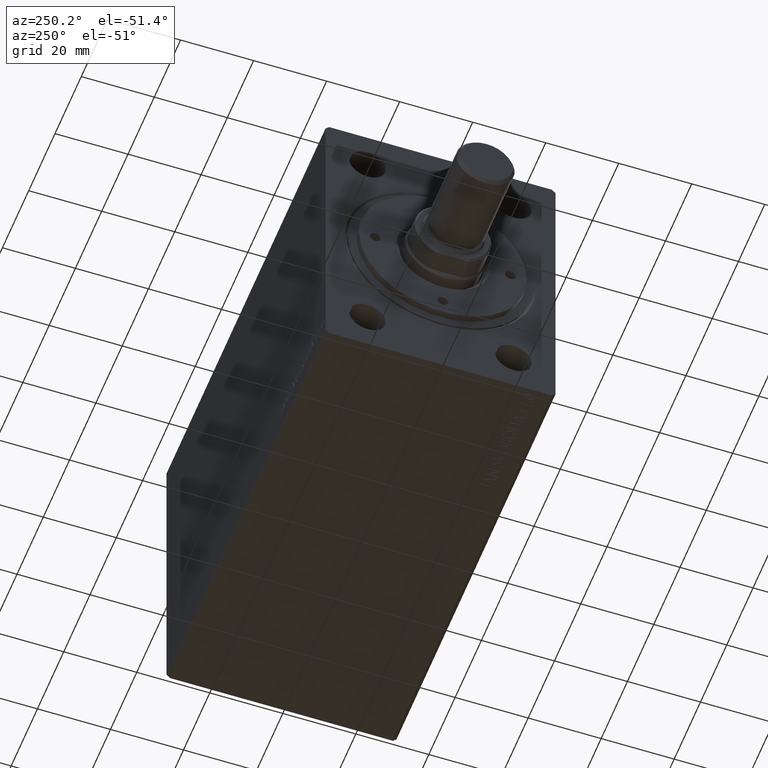
[diagram: clean part render]
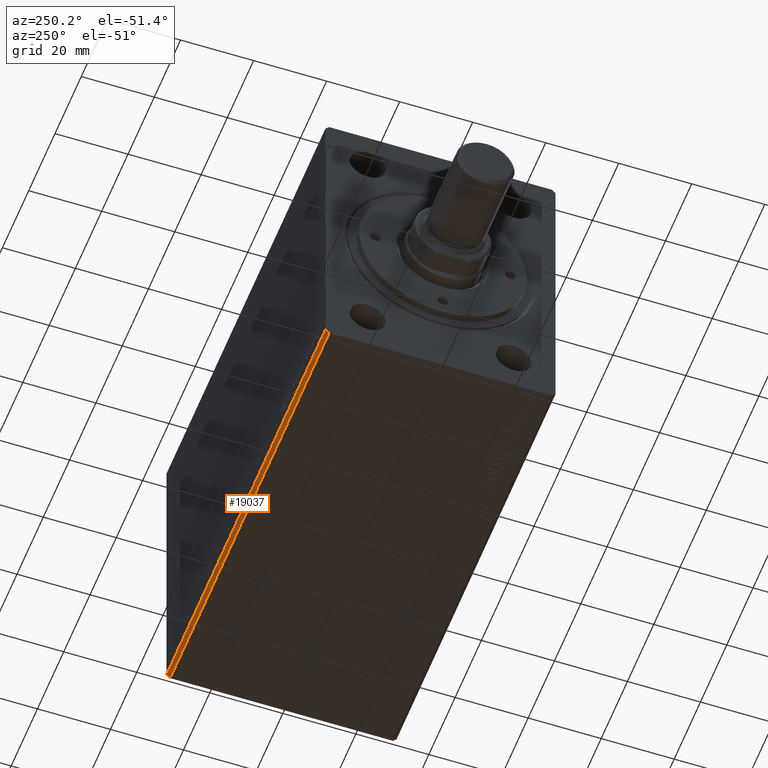
[diagram: same view with one face highlighted and labeled with its STEP entity id]
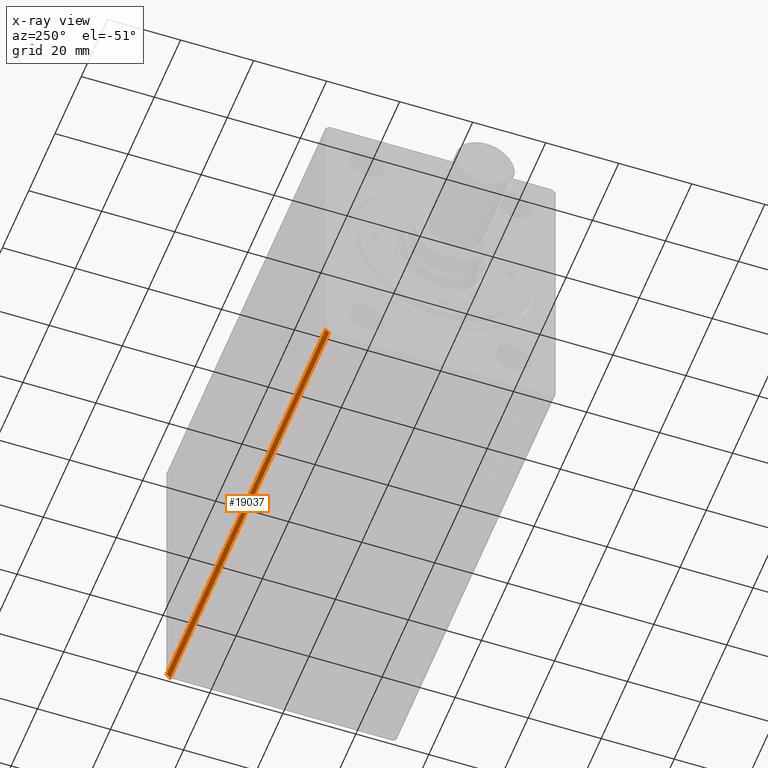
[diagram: x-ray of the same camera — body ghosted, the highlighted face saturated]
A machine part, auxiliary view. The second image highlights one B-rep face of the part: STEP entity #19037.
The next image is the same camera in x-ray: the body ghosted, the highlighted face saturated — about 0% of this face is hidden behind the body in this view.
In plain terms, the highlighted planar face has unit normal (0, -0.7071, 0.7071).
Its self-contained STEP definition (entity closure, byte-faithful):
#1220 = VERTEX_POINT ( 'NONE', #39014 ) ;
#1384 = FACE_OUTER_BOUND ( 'NONE', #6285, .T. ) ;
#1859 = CARTESIAN_POINT ( 'NONE',  ( 121.0000000000000000, 30.50000000000001776, -42.50000000000000711 ) ) ;
#1987 = DIRECTION ( 'NONE',  ( -1.000000000000000000, -0.000000000000000000, -0.000000000000000000 ) ) ;
#4763 = DIRECTION ( 'NONE',  ( 0.000000000000000000, -0.7071067811865489050, 0.7071067811865462405 ) ) ;
#4820 = CARTESIAN_POINT ( 'NONE',  ( 121.0000000000000000, 31.50000000000001421, -41.50000000000000711 ) ) ;
#4987 = LINE ( 'NONE', #1859, #29780 ) ;
#5187 = EDGE_CURVE ( 'NONE', #12671, #1220, #4987, .T. ) ;
#6285 = EDGE_LOOP ( 'NONE', ( #9965, #31581, #23498, #7453 ) ) ;
#7453 = ORIENTED_EDGE ( 'NONE', *, *, #5187, .T. ) ;
#9191 = CARTESIAN_POINT ( 'NONE',  ( 121.0000000000000000, 31.50000000000001421, -41.50000000000000711 ) ) ;
#9965 = ORIENTED_EDGE ( 'NONE', *, *, #29225, .T. ) ;
#10180 = VECTOR ( 'NONE', #13840, 999.9999999999998863 ) ;
#10250 = CARTESIAN_POINT ( 'NONE',  ( 0.000000000000000000, 30.50000000000001776, -42.50000000000000711 ) ) ;
#11596 = DIRECTION ( 'NONE',  ( 0.000000000000000000, 0.7071067811865462405, 0.7071067811865489050 ) ) ;
#12671 = VERTEX_POINT ( 'NONE', #15977 ) ;
#13840 = DIRECTION ( 'NONE',  ( 0.000000000000000000, 0.7071067811865462405, 0.7071067811865489050 ) ) ;
#14664 = EDGE_CURVE ( 'NONE', #12671, #37748, #38572, .T. ) ;
#14691 = CARTESIAN_POINT ( 'NONE',  ( 121.0000000000000000, 30.50000000000001776, -42.50000000000000711 ) ) ;
#14865 = VERTEX_POINT ( 'NONE', #36524 ) ;
#15977 = CARTESIAN_POINT ( 'NONE',  ( 121.0000000000000000, 30.50000000000001776, -42.50000000000000711 ) ) ;
#19037 = ADVANCED_FACE ( 'NONE', ( #1384 ), #32395, .F. ) ;
#20957 = EDGE_CURVE ( 'NONE', #37748, #14865, #36804, .T. ) ;
#23478 = VECTOR ( 'NONE', #11596, 999.9999999999998863 ) ;
#23498 = ORIENTED_EDGE ( 'NONE', *, *, #14664, .F. ) ;
#27534 = LINE ( 'NONE', #10250, #10180 ) ;
#27804 = CARTESIAN_POINT ( 'NONE',  ( 121.0000000000000000, 30.50000000000001776, -42.50000000000000711 ) ) ;
#28160 = DIRECTION ( 'NONE',  ( 0.000000000000000000, -0.7071067811865462405, -0.7071067811865489050 ) ) ;
#29225 = EDGE_CURVE ( 'NONE', #1220, #14865, #27534, .T. ) ;
#29270 = DIRECTION ( 'NONE',  ( -1.000000000000000000, -0.000000000000000000, -0.000000000000000000 ) ) ;
#29780 = VECTOR ( 'NONE', #29270, 1000.000000000000000 ) ;
#31581 = ORIENTED_EDGE ( 'NONE', *, *, #20957, .F. ) ;
#32395 = PLANE ( 'NONE',  #36561 ) ;
#33775 = VECTOR ( 'NONE', #1987, 1000.000000000000000 ) ;
#36524 = CARTESIAN_POINT ( 'NONE',  ( 0.000000000000000000, 31.50000000000001421, -41.50000000000000711 ) ) ;
#36561 = AXIS2_PLACEMENT_3D ( 'NONE', #14691, #4763, #28160 ) ;
#36804 = LINE ( 'NONE', #9191, #33775 ) ;
#37748 = VERTEX_POINT ( 'NONE', #4820 ) ;
#38572 = LINE ( 'NONE', #27804, #23478 ) ;
#39014 = CARTESIAN_POINT ( 'NONE',  ( 0.000000000000000000, 30.50000000000001776, -42.50000000000000711 ) ) ;